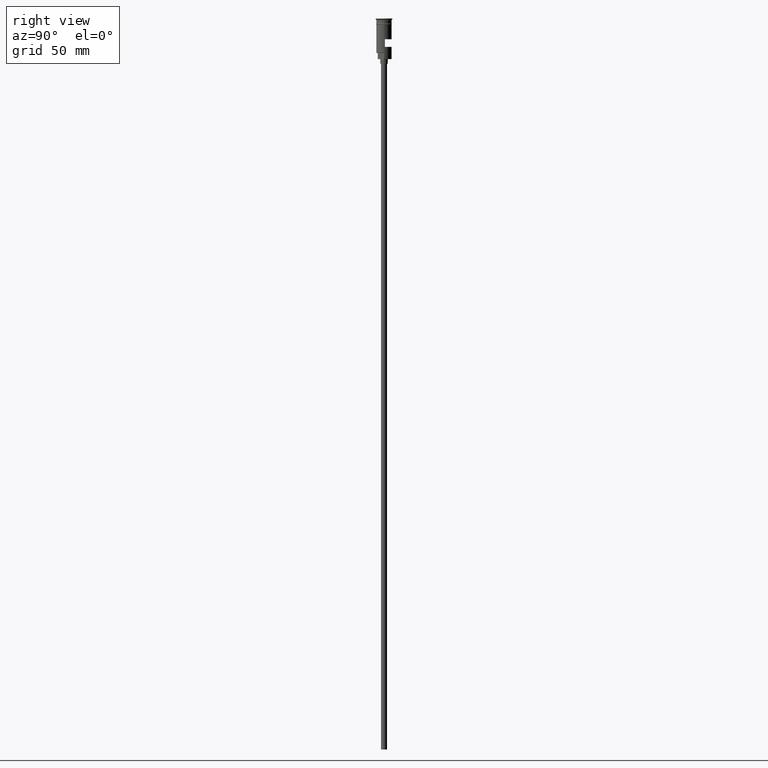
[diagram: clean part render]
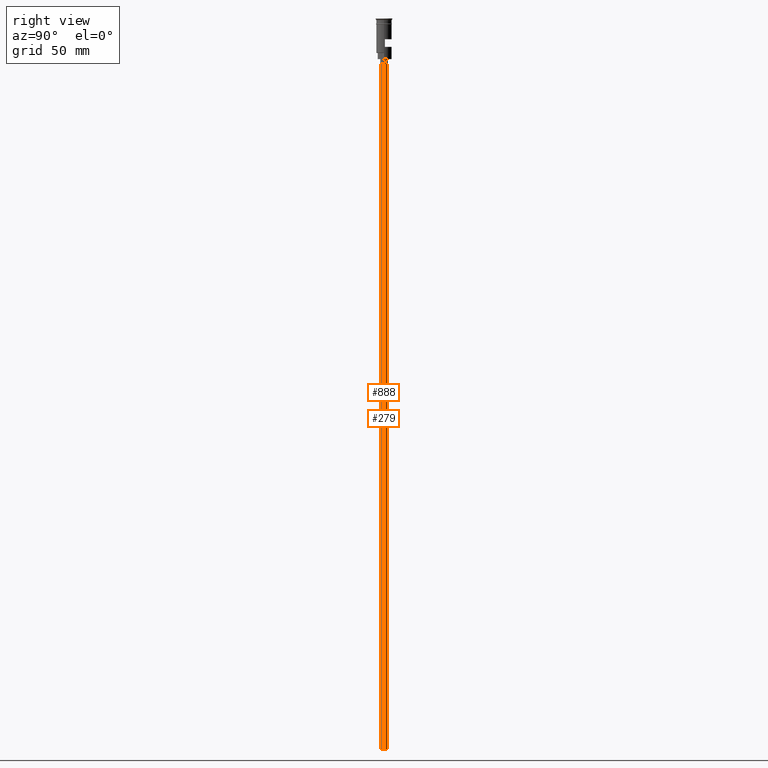
[diagram: same view with one multi-face feature highlighted, each face labeled with its STEP entity id]
A machine part, right view. The highlighted faces form ONE feature: a constant-radius fillet chain: 2 tangent blend faces with common blend radius 2 mm. The faces share edges in the B-rep.
Their STEP definitions:
[1] entity #279 (Cylinder):
#17 = DIRECTION ( 'NONE',  ( -1.000000000000000000, 0.000000000000000000, 0.000000000000000000 ) ) ;
#29 = VERTEX_POINT ( 'NONE', #1213 ) ;
#93 = LINE ( 'NONE', #237, #146 ) ;
#97 = VECTOR ( 'NONE', #1252, 1000.000000000000000 ) ;
#146 = VECTOR ( 'NONE', #1222, 1000.000000000000000 ) ;
#179 = CARTESIAN_POINT ( 'NONE',  ( -2.000000000000000000, 2.449293598294706414E-16, -476.5000000000000568 ) ) ;
#182 = VERTEX_POINT ( 'NONE', #1388 ) ;
#217 = EDGE_LOOP ( 'NONE', ( #1389, #218, #640, #1498 ) ) ;
#218 = ORIENTED_EDGE ( 'NONE', *, *, #958, .F. ) ;
#231 = CARTESIAN_POINT ( 'NONE',  ( 2.000000000000000000, 0.000000000000000000, -476.5000000000000568 ) ) ;
#237 = CARTESIAN_POINT ( 'NONE',  ( -2.000000000000000000, 2.449293598294706414E-16, -476.5000000000000568 ) ) ;
#266 = CARTESIAN_POINT ( 'NONE',  ( 0.000000000000000000, 0.000000000000000000, -29.50000000000000000 ) ) ;
#279 = ADVANCED_FACE ( 'NONE', ( #1603 ), #1192, .T. ) ;
#340 = EDGE_CURVE ( 'NONE', #1267, #29, #93, .T. ) ;
#347 = CARTESIAN_POINT ( 'NONE',  ( 0.000000000000000000, 0.000000000000000000, -476.5000000000000568 ) ) ;
#351 = VERTEX_POINT ( 'NONE', #231 ) ;
#443 = CIRCLE ( 'NONE', #1076, 2.000000000000000000 ) ;
#640 = ORIENTED_EDGE ( 'NONE', *, *, #1194, .T. ) ;
#711 = DIRECTION ( 'NONE',  ( 1.000000000000000000, 0.000000000000000000, 0.000000000000000000 ) ) ;
#774 = AXIS2_PLACEMENT_3D ( 'NONE', #266, #1485, #1104 ) ;
#820 = AXIS2_PLACEMENT_3D ( 'NONE', #347, #1467, #711 ) ;
#958 = EDGE_CURVE ( 'NONE', #351, #1267, #443, .T. ) ;
#1076 = AXIS2_PLACEMENT_3D ( 'NONE', #1220, #1488, #17 ) ;
#1104 = DIRECTION ( 'NONE',  ( -1.000000000000000000, 0.000000000000000000, 0.000000000000000000 ) ) ;
#1192 = CYLINDRICAL_SURFACE ( 'NONE', #820, 2.000000000000000000 ) ;
#1194 = EDGE_CURVE ( 'NONE', #351, #182, #1379, .T. ) ;
#1202 = EDGE_CURVE ( 'NONE', #182, #29, #1265, .T. ) ;
#1213 = CARTESIAN_POINT ( 'NONE',  ( -2.000000000000000000, 2.449293598294706414E-16, -29.50000000000000000 ) ) ;
#1220 = CARTESIAN_POINT ( 'NONE',  ( 0.000000000000000000, 0.000000000000000000, -476.5000000000000568 ) ) ;
#1222 = DIRECTION ( 'NONE',  ( -0.000000000000000000, -0.000000000000000000, 1.000000000000000000 ) ) ;
#1252 = DIRECTION ( 'NONE',  ( -0.000000000000000000, -0.000000000000000000, 1.000000000000000000 ) ) ;
#1265 = CIRCLE ( 'NONE', #774, 2.000000000000000000 ) ;
#1267 = VERTEX_POINT ( 'NONE', #179 ) ;
#1379 = LINE ( 'NONE', #1520, #97 ) ;
#1388 = CARTESIAN_POINT ( 'NONE',  ( 2.000000000000000000, 0.000000000000000000, -29.50000000000000000 ) ) ;
#1389 = ORIENTED_EDGE ( 'NONE', *, *, #340, .F. ) ;
#1467 = DIRECTION ( 'NONE',  ( -0.000000000000000000, -0.000000000000000000, 1.000000000000000000 ) ) ;
#1485 = DIRECTION ( 'NONE',  ( 0.000000000000000000, 0.000000000000000000, -1.000000000000000000 ) ) ;
#1488 = DIRECTION ( 'NONE',  ( 0.000000000000000000, 0.000000000000000000, -1.000000000000000000 ) ) ;
#1498 = ORIENTED_EDGE ( 'NONE', *, *, #1202, .T. ) ;
#1520 = CARTESIAN_POINT ( 'NONE',  ( 2.000000000000000000, 0.000000000000000000, -476.5000000000000568 ) ) ;
#1603 = FACE_OUTER_BOUND ( 'NONE', #217, .T. ) ;
[2] entity #888 (Cylinder):
#29 = VERTEX_POINT ( 'NONE', #1213 ) ;
#93 = LINE ( 'NONE', #237, #146 ) ;
#97 = VECTOR ( 'NONE', #1252, 1000.000000000000000 ) ;
#133 = DIRECTION ( 'NONE',  ( -1.000000000000000000, 0.000000000000000000, 0.000000000000000000 ) ) ;
#146 = VECTOR ( 'NONE', #1222, 1000.000000000000000 ) ;
#179 = CARTESIAN_POINT ( 'NONE',  ( -2.000000000000000000, 2.449293598294706414E-16, -476.5000000000000568 ) ) ;
#182 = VERTEX_POINT ( 'NONE', #1388 ) ;
#231 = CARTESIAN_POINT ( 'NONE',  ( 2.000000000000000000, 0.000000000000000000, -476.5000000000000568 ) ) ;
#237 = CARTESIAN_POINT ( 'NONE',  ( -2.000000000000000000, 2.449293598294706414E-16, -476.5000000000000568 ) ) ;
#271 = DIRECTION ( 'NONE',  ( 1.000000000000000000, 0.000000000000000000, 0.000000000000000000 ) ) ;
#309 = AXIS2_PLACEMENT_3D ( 'NONE', #1303, #918, #560 ) ;
#340 = EDGE_CURVE ( 'NONE', #1267, #29, #93, .T. ) ;
#351 = VERTEX_POINT ( 'NONE', #231 ) ;
#416 = EDGE_CURVE ( 'NONE', #29, #182, #945, .T. ) ;
#560 = DIRECTION ( 'NONE',  ( -1.000000000000000000, 0.000000000000000000, 0.000000000000000000 ) ) ;
#576 = EDGE_CURVE ( 'NONE', #1267, #351, #596, .T. ) ;
#586 = ORIENTED_EDGE ( 'NONE', *, *, #576, .F. ) ;
#596 = CIRCLE ( 'NONE', #309, 2.000000000000000000 ) ;
#644 = DIRECTION ( 'NONE',  ( 0.000000000000000000, 0.000000000000000000, -1.000000000000000000 ) ) ;
#865 = CARTESIAN_POINT ( 'NONE',  ( 0.000000000000000000, 0.000000000000000000, -29.50000000000000000 ) ) ;
#888 = ADVANCED_FACE ( 'NONE', ( #1390 ), #1116, .T. ) ;
#918 = DIRECTION ( 'NONE',  ( 0.000000000000000000, 0.000000000000000000, -1.000000000000000000 ) ) ;
#945 = CIRCLE ( 'NONE', #1474, 2.000000000000000000 ) ;
#1053 = AXIS2_PLACEMENT_3D ( 'NONE', #1496, #1516, #271 ) ;
#1095 = EDGE_LOOP ( 'NONE', ( #586, #1290, #1410, #1364 ) ) ;
#1116 = CYLINDRICAL_SURFACE ( 'NONE', #1053, 2.000000000000000000 ) ;
#1194 = EDGE_CURVE ( 'NONE', #351, #182, #1379, .T. ) ;
#1213 = CARTESIAN_POINT ( 'NONE',  ( -2.000000000000000000, 2.449293598294706414E-16, -29.50000000000000000 ) ) ;
#1222 = DIRECTION ( 'NONE',  ( -0.000000000000000000, -0.000000000000000000, 1.000000000000000000 ) ) ;
#1252 = DIRECTION ( 'NONE',  ( -0.000000000000000000, -0.000000000000000000, 1.000000000000000000 ) ) ;
#1267 = VERTEX_POINT ( 'NONE', #179 ) ;
#1290 = ORIENTED_EDGE ( 'NONE', *, *, #340, .T. ) ;
#1303 = CARTESIAN_POINT ( 'NONE',  ( 0.000000000000000000, 0.000000000000000000, -476.5000000000000568 ) ) ;
#1364 = ORIENTED_EDGE ( 'NONE', *, *, #1194, .F. ) ;
#1379 = LINE ( 'NONE', #1520, #97 ) ;
#1388 = CARTESIAN_POINT ( 'NONE',  ( 2.000000000000000000, 0.000000000000000000, -29.50000000000000000 ) ) ;
#1390 = FACE_OUTER_BOUND ( 'NONE', #1095, .T. ) ;
#1410 = ORIENTED_EDGE ( 'NONE', *, *, #416, .T. ) ;
#1474 = AXIS2_PLACEMENT_3D ( 'NONE', #865, #644, #133 ) ;
#1496 = CARTESIAN_POINT ( 'NONE',  ( 0.000000000000000000, 0.000000000000000000, -476.5000000000000568 ) ) ;
#1516 = DIRECTION ( 'NONE',  ( -0.000000000000000000, -0.000000000000000000, 1.000000000000000000 ) ) ;
#1520 = CARTESIAN_POINT ( 'NONE',  ( 2.000000000000000000, 0.000000000000000000, -476.5000000000000568 ) ) ;